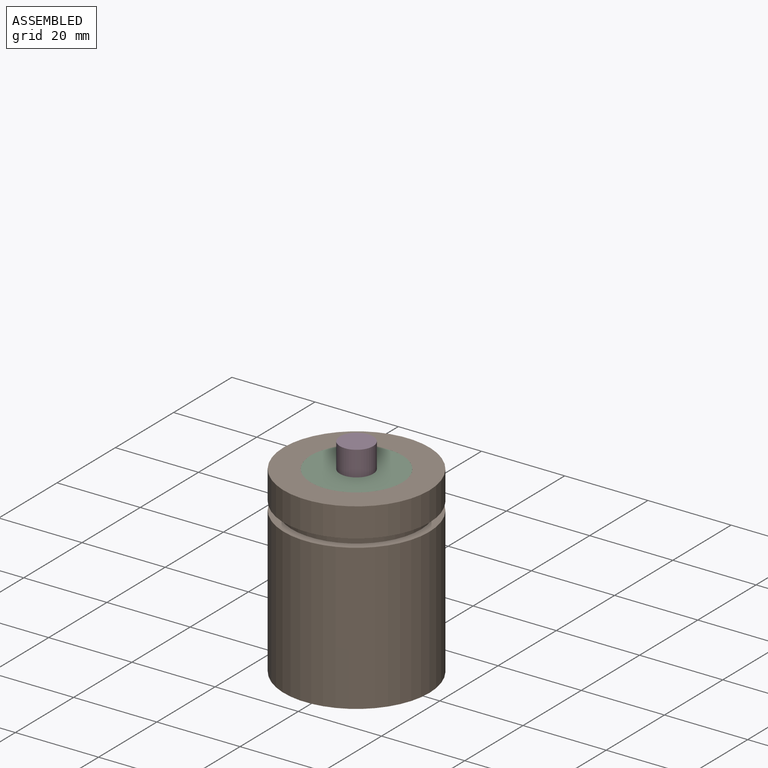
[diagram: assembled view]
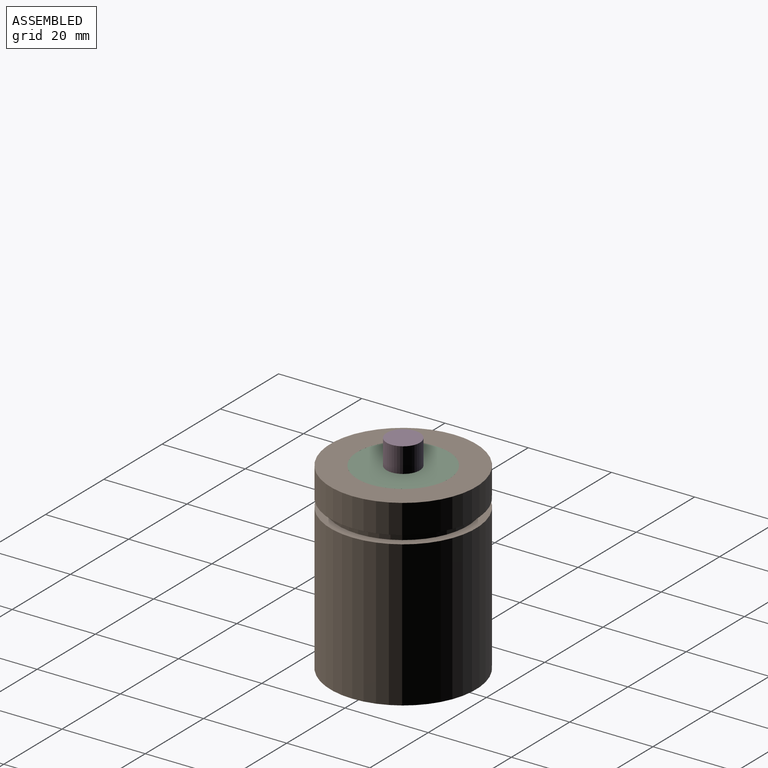
[diagram: assembled view, second angle]
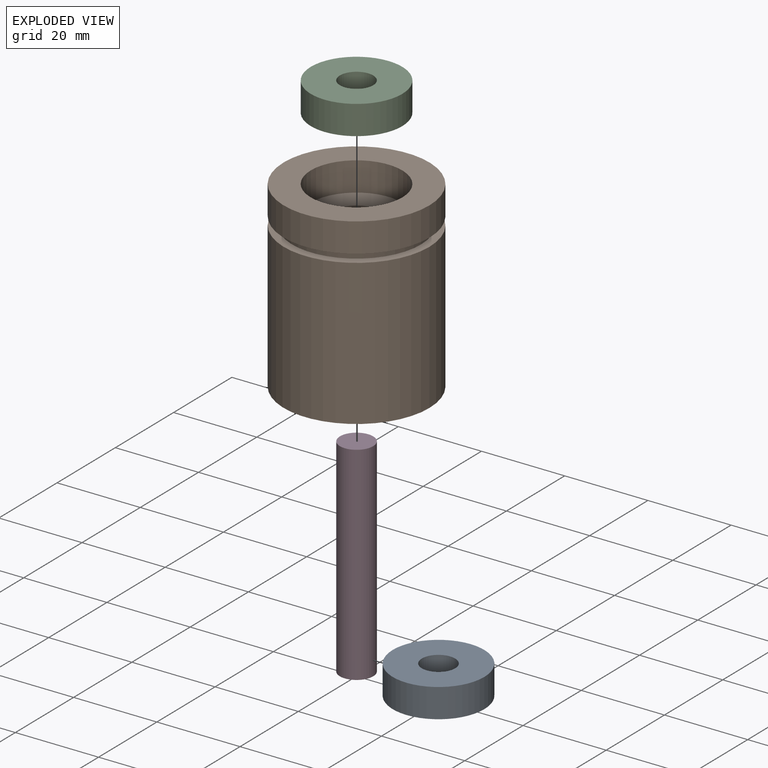
[diagram: exploded view]
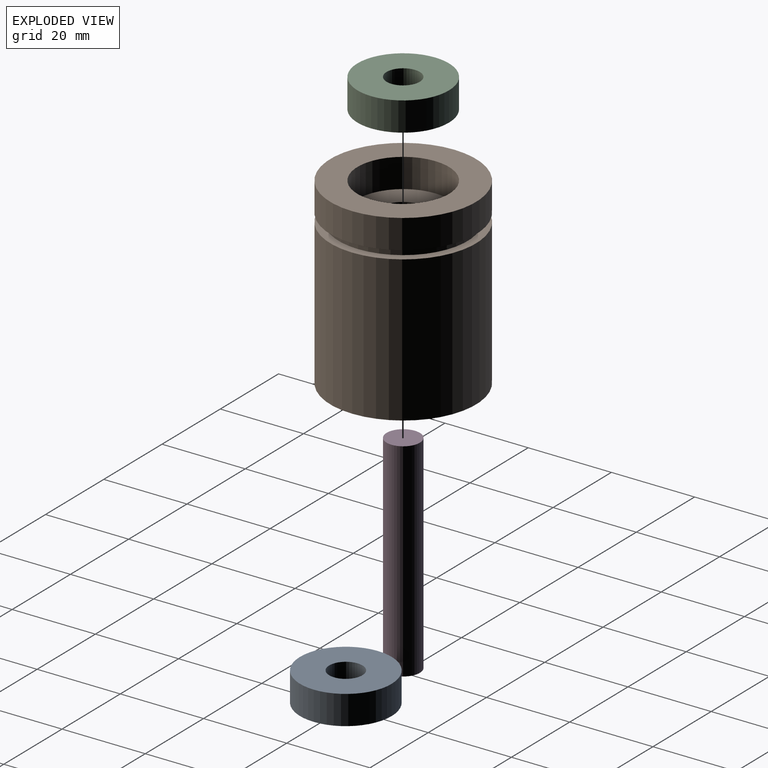
[diagram: exploded view, second angle]
ASSEMBLY  parts=4 mates=3
PART A: 4 faces, bbox 22x22x7 mm
  f0: cylinder r=4mm len=8mm, axis (0,0,-1), area 175.9mm2, adj f2,f3
  f1: cylinder r=11mm len=22mm, axis (0,0,-1), area 483.8mm2, adj f2,f3
  f2: plane 22x22mm, normal (0,0,1), area 329.9mm2, adj f0,f1
  f3: plane 22x22mm, normal (0,0,-1), area 329.9mm2, adj f0,f1
PART B: 12 faces, bbox 35x35x44 mm
  f0: cylinder r=17.5mm len=35mm, axis (0,0,-1), area 3848.5mm2, adj f8,f10
  f1: plane 22x22mm, normal (0,0,1), area 301.6mm2, adj f2,f4
  f2: cylinder r=5mm len=30mm, axis (0,0,-1), area 942.5mm2, adj f1,f6
  f3: cylinder r=17.5mm len=35mm, axis (0,0,-1), area 769.7mm2, adj f5,f11
  f4: cylinder r=11mm len=22mm, axis (0,0,-1), area 483.8mm2, adj f1,f5
  f5: plane 35x35mm, normal (0,0,1), area 582mm2, adj f3,f4
  f6: plane 22x22mm, normal (0,0,-1), area 301.6mm2, adj f2,f7
  f7: cylinder r=11mm len=22mm, axis (0,0,1), area 483.8mm2, adj f6,f8
  f8: plane 35x35mm, normal (0,0,-1), area 582mm2, adj f0,f7
  f9: cylinder r=15.5mm len=31mm, axis (0,0,1), area 194.8mm2, adj f10,f11
  f10: plane 35x35mm, normal (0,0,1), area 207.3mm2, adj f0,f9
  f11: plane 35x35mm, normal (0,0,-1), area 207.3mm2, adj f3,f9
PART C: same geometry as A
PART D: 3 faces, bbox 8x8x50 mm
  f0: cylinder r=4mm len=50mm, axis (0,0,-1), area 1256.6mm2, adj f1,f2
  f1: plane 8x8mm, normal (0,0,1), area 50.3mm2, adj f0
  f2: plane 8x8mm, normal (0,0,-1), area 50.3mm2, adj f0
PLACE A at identity
PLACE B t=(0,0,22)mm
PLACE C t=(0,0,37)mm
PLACE D at identity
MATE fastened A.f0 <-> D.f0  axis (0,0,-1) through (0,0,0)mm
MATE fastened B.f0 <-> A.f0  axis (0,0,-1) through (0,0,7)mm
MATE fastened B.f0 <-> C.f0  axis (0,0,1) through (0,0,37)mm
